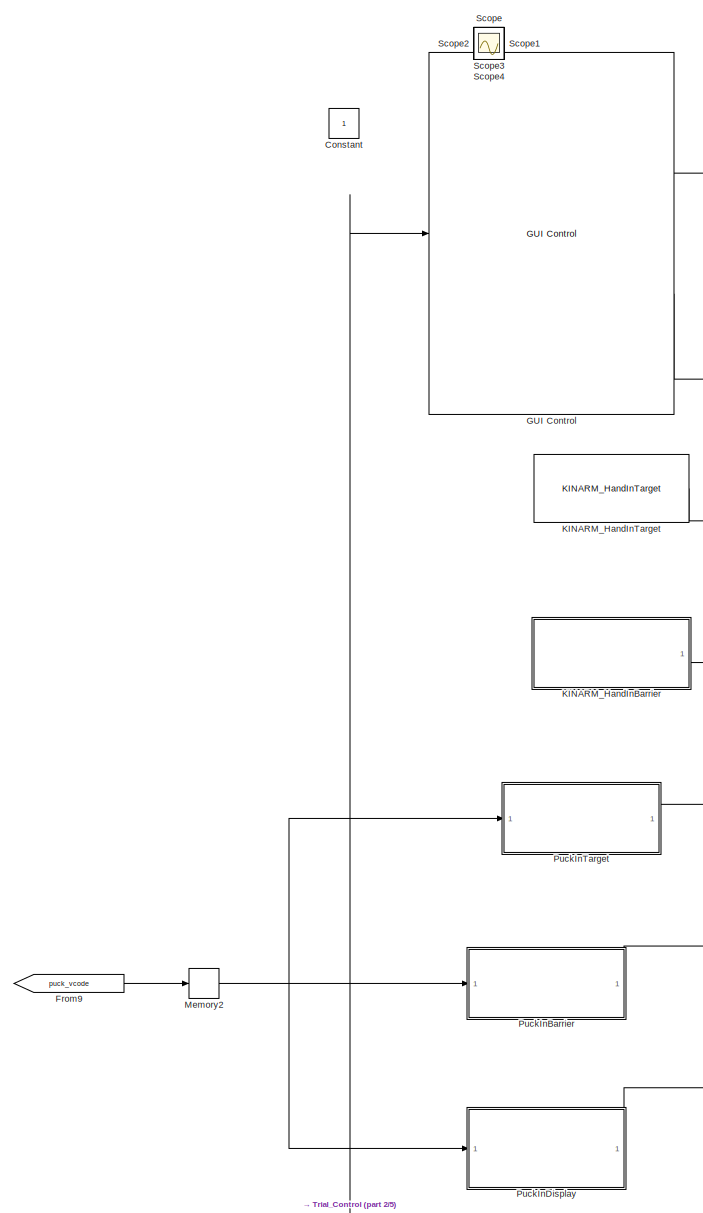
[diagram: root canvas - part 1/5, left side, full height]
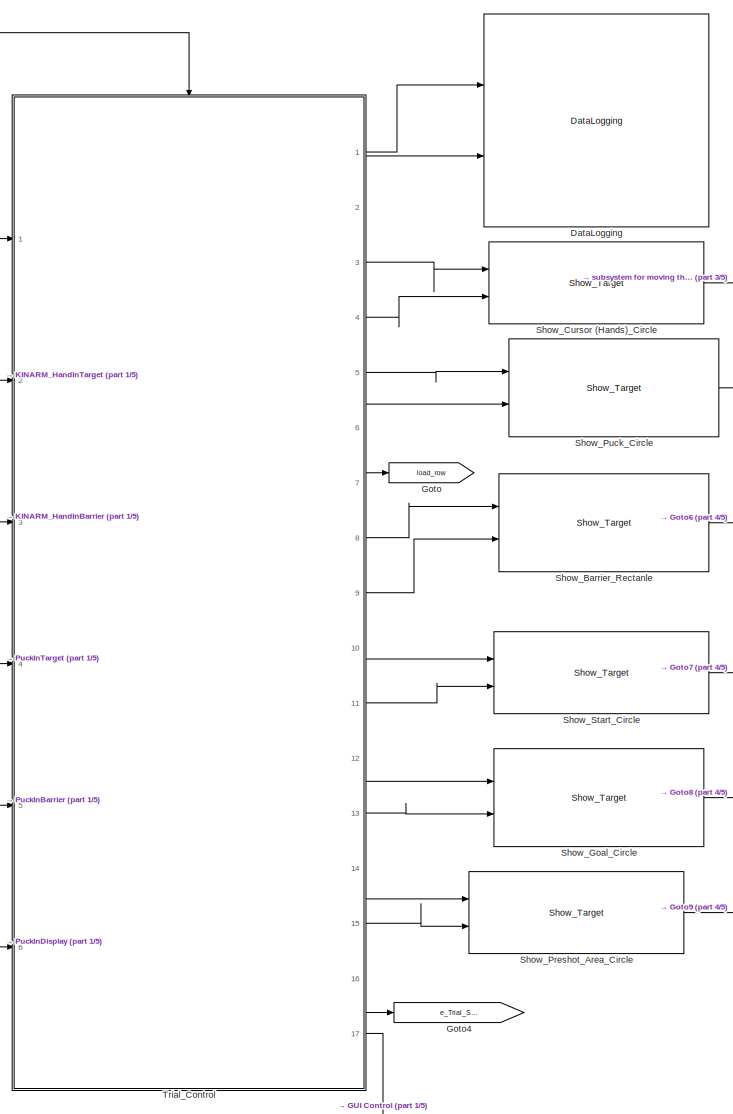
[diagram: root canvas - part 2/5, central region]
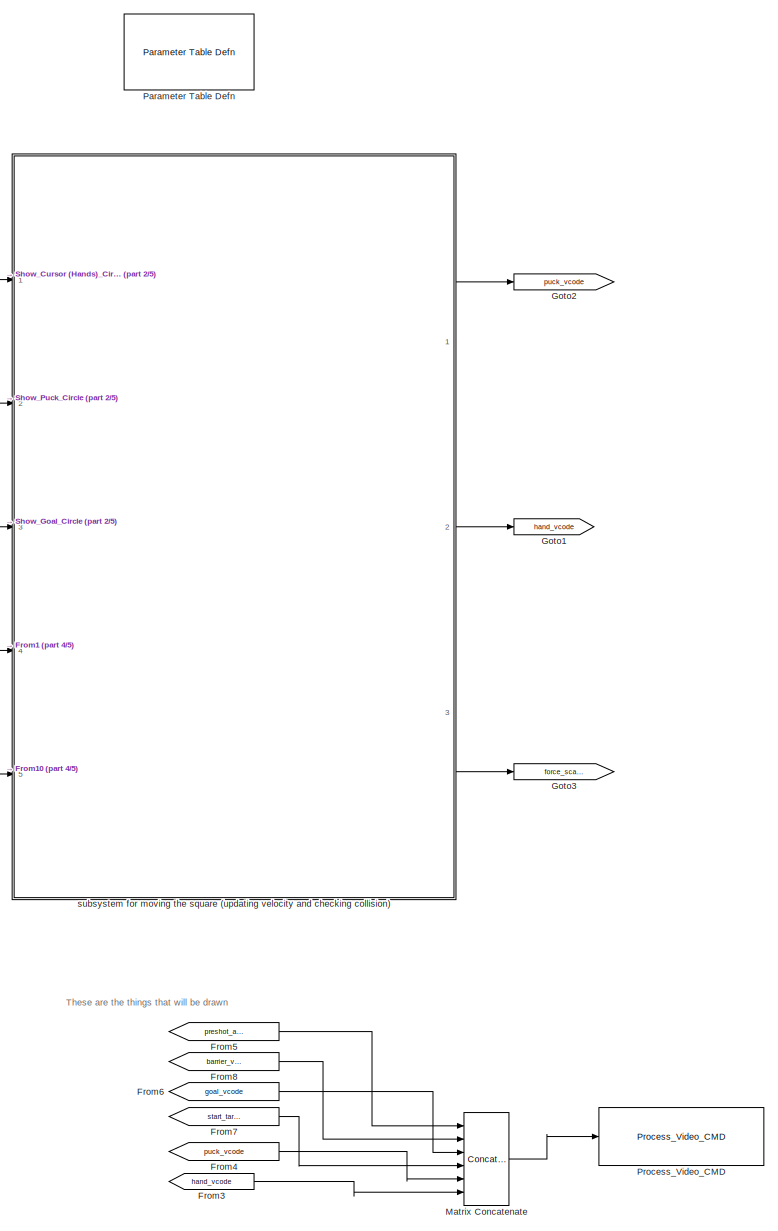
[diagram: root canvas - part 3/5, right side, full height]
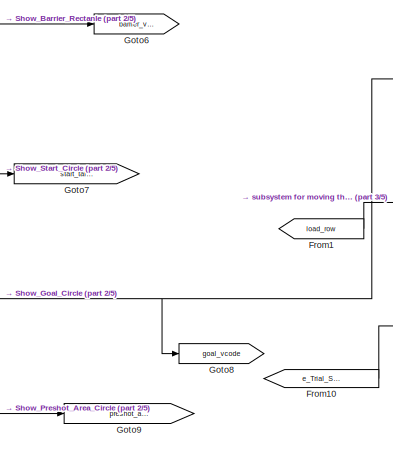
[diagram: root canvas - part 4/5, central region]
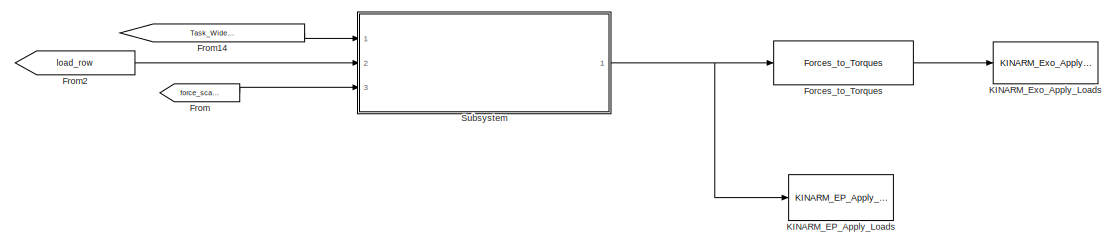
[diagram: root canvas - part 5/5, bottom center region]
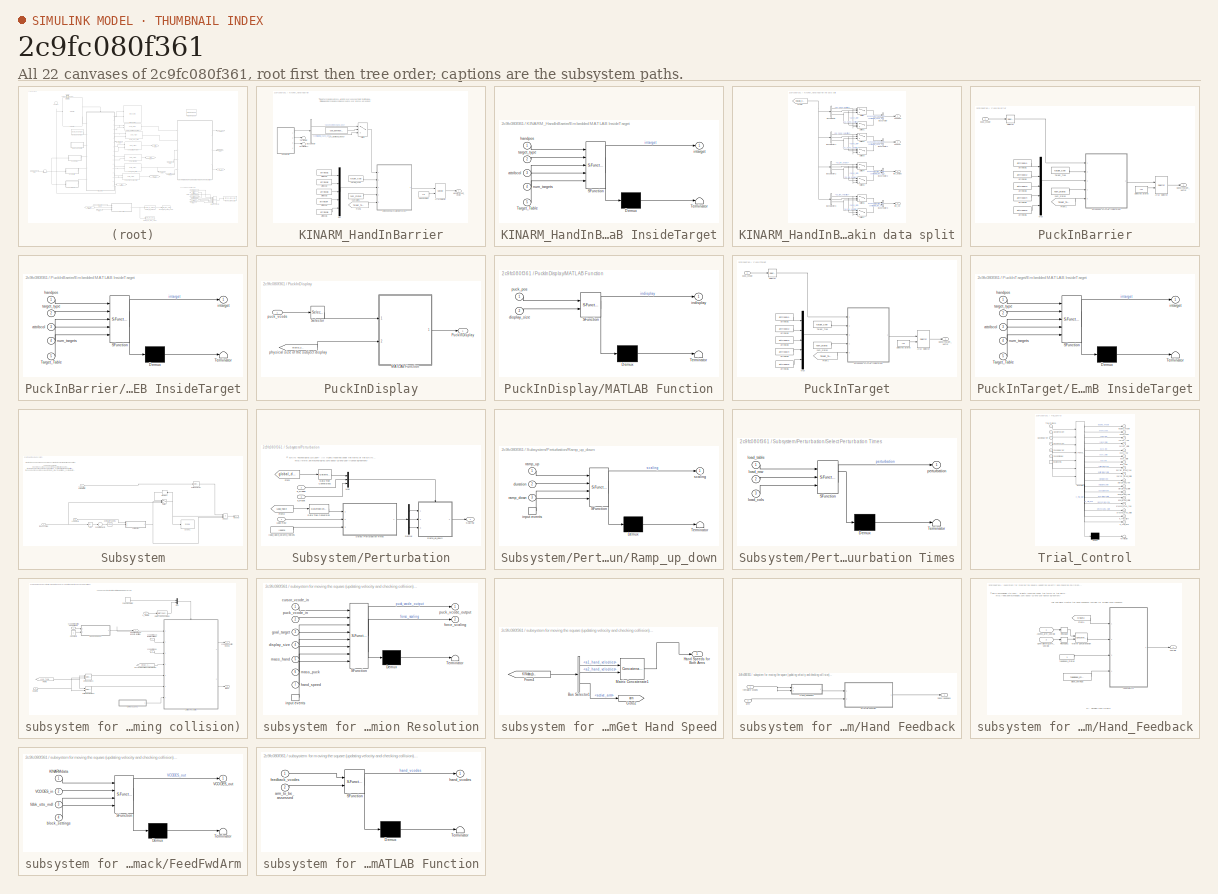
[diagram: thumbnail index - all 22 canvases of the model, root first then tree order]
MODEL slx_2c9fc080f361
KIND model
CONFIG AbsTol = auto
CONFIG EnableMultiTasking = on
CONFIG FixedStep = BKIN_STEP_TIME
CONFIG MaxStep = auto
CONFIG MinStep = auto
CONFIG RelTol = 1e-3
CONFIG SampleTimeConstraint = Unconstrained
CONFIG Solver = ode4
CONFIG SolverName = ode4
CONFIG StartFcn =  warndlg('Dexterit-E models cannot run under simulation. Please compile your model and run it from within Dexterit-E.');set_param(bdroot,'SimulationCommand','stop')
CONFIG StartTime = 0.0
CONFIG StopTime = inf
WORKSPACE source: mxarray member
WORKSPACE BARRIER_ROW = 5
WORKSPACE BKIN_KINEMATIC_FRAME_SIZE = 400
WORKSPACE BKIN_STEP_TIME = 0.00025
WORKSPACE CIRCLE_STROKE = 10
WORKSPACE CIRCLE_STROKE_W = 11
WORKSPACE CURSOR_ROW = 2
WORKSPACE E_BARRIER_HIT = 6
WORKSPACE E_COLLISION_HIT = 7
WORKSPACE E_ENTER_PRESHOT_AREA = 2
WORKSPACE E_ENTER_START_AREA = 12
WORKSPACE E_EXIT = 13
WORKSPACE E_EXIT_PRESHOT_AREA = 10
WORKSPACE E_GOAL_HIT = 8
WORKSPACE E_GOAL_REACHED = 5
WORKSPACE E_NO_EVENT = 0
WORKSPACE E_PRESHOT_ROW = 4
WORKSPACE E_TARGET_OUT_OF_BOUNDS = 9
WORKSPACE E_TRIAL_BEGIN = 1
WORKSPACE E_TRIAL_ENDED = 3
WORKSPACE FIRST_FILL = 8
WORKSPACE FORCE_MULTIPLIER = 1
WORKSPACE F_BUMP = 1
WORKSPACE GOAL_ROW = 8
WORKSPACE GOAL_TIME = 12
WORKSPACE HEIGHT = 6
WORKSPACE INVISIBLE_FILL = 15
WORKSPACE LOAD_ROW = 4
WORKSPACE MASS_CIRCLE = 2
WORKSPACE MASS_RECT = 3
WORKSPACE PERT_DUR = 5
WORKSPACE PERT_RAMP = 4
WORKSPACE PRESHOT_ROW = 7
WORKSPACE PUCK_ROW = 3
WORKSPACE RADIUS_LOG = 4
WORKSPACE RADIUS_VIS = 5
WORKSPACE RECT_STROKE = 13
WORKSPACE RECT_STROKE_W = 14
WORKSPACE ROTATION = 7
WORKSPACE SECONDS = 1
WORKSPACE SECOND_FILL = 9
WORKSPACE SHOT_READY_TIME = 10
WORKSPACE SHOT_SET_TIME = 11
WORKSPACE START_HOLD_TIME = 9
WORKSPACE START_ROW = 6
WORKSPACE THIRD_FILL = 12
WORKSPACE TRIAL_FAILURE = 11
WORKSPACE WIDTH = 3
WORKSPACE col_x = 1
WORKSPACE col_y = 2
BLOCK [Constant] Constant
  IOType = siggen
BLOCK [Reference] DataLogging  REF=General/DataLogging
  Ports = [2]
  SourceBlock = General/DataLogging
  SourceType = DataLogging
BLOCK [Reference] Forces_to_Torques  REF=KINARM_loads/Forces_to_Torques
  Ports = [1, 1]
  SourceBlock = KINARM_loads/Forces_to_Torques
  SourceType = Forces_to_Torques
BLOCK [From] From
  GotoTag = force_scaling
BLOCK [From] From1
  GotoTag = load_row
BLOCK [From] From10
  GotoTag = e_Trial_Start
BLOCK [From] From14
  GotoTag = Task_Wide_Parameters
  TagVisibility = global
BLOCK [From] From2
  GotoTag = load_row
BLOCK [From] From3
  GotoTag = hand_vcode
BLOCK [From] From4
  GotoTag = puck_vcode
BLOCK [From] From5
  GotoTag = preshot_area_vcode
BLOCK [From] From6
  GotoTag = goal_vcode
BLOCK [From] From7
  GotoTag = start_target_vcode
BLOCK [From] From8
  GotoTag = barrier_vcode
BLOCK [From] From9
  GotoTag = puck_vcode
BLOCK [Reference] GUI Control  REF=General/GUI Control
  Ports = [1, 2]
  SourceBlock = General/GUI Control
  SourceType = GUI Control
BLOCK [Goto] Goto
  GotoTag = load_row
BLOCK [Goto] Goto1
  GotoTag = hand_vcode
BLOCK [Goto] Goto2
  GotoTag = puck_vcode
BLOCK [Goto] Goto3
  GotoTag = force_scaling
BLOCK [Goto] Goto4
  GotoTag = e_Trial_Start
BLOCK [Goto] Goto6
  GotoTag = barrier_vcode
BLOCK [Goto] Goto7
  GotoTag = start_target_vcode
BLOCK [Goto] Goto8
  GotoTag = goal_vcode
BLOCK [Goto] Goto9
  GotoTag = preshot_area_vcode
BLOCK [Reference] KINARM_EP_Apply_Loads  REF=KINARM_EP_loads/KINARM_EP_Apply_Loads
  Ports = [1]
  SourceBlock = KINARM_EP_loads/KINARM_EP_Apply_Loads
  SourceType = KINARM_EP_Apply_Loads
BLOCK [Reference] KINARM_Exo_Apply_Loads  REF=KINARM_loads/KINARM_Exo_Apply_Loads
  Ports = [1]
  SourceBlock = KINARM_loads/KINARM_Exo_Apply_Loads
  SourceType = KINARM_Exo_Apply_Loads
BLOCK [SubSystem] KINARM_HandInBarrier
  AncestorBlock = KINARM_general/KINARM_HandInTarget
  Ports = [0, 1]
  RequestExecContextInheritance = off
BLOCK [Selector] KINARM_HandInBarrier/Array Selector
  IndexOptions = Select all,Index vector (port)
  Indices = -1,1
  InputPortWidth = 3
  NumberOfDimensions = 2
  OutputSizes = slselsubs([(-2),(-2)],1),slselsubs([(-2),(-2)],2)
  Ports = [2, 1]
BLOCK [BusSelector] KINARM_HandInBarrier/Bus Selector
  OutputAsBus = off
  OutputSignals = assessment_hand_pos,contralateral_hand_pos
  Ports = [1, 2]
BLOCK [SubSystem] KINARM_HandInBarrier/Embedded MATLAB InsideTarget
  ErrorFcn = Stateflow.Translate.translate
  PermitHierarchicalResolution = ExplicitOnly
  Ports = [5, 1]
  RTWFileNameOpts = Use function name
  RTWSystemCode = Nonreusable function
  RequestExecContextInheritance = off
  SFBlockType = MATLAB Function
  TreatAsAtomicUnit = on
BLOCK [Demux] KINARM_HandInBarrier/Embedded MATLAB InsideTarget/ Demux 
  Outputs = 1
  Ports = [1, 1]
BLOCK [S-Function] KINARM_HandInBarrier/Embedded MATLAB InsideTarget/ SFunction 
  EnableBusSupport = on
  FunctionName = sf_sfun
  PortCounts = [5 2]
  Ports = [5, 2]
  SFcnIsStateOwnerBlock = off
  SFunctionDeploymentMode = off
  Tag = Stateflow S-Function 7
BLOCK [Terminator] KINARM_HandInBarrier/Embedded MATLAB InsideTarget/ Terminator 
BLOCK [Inport] KINARM_HandInBarrier/Embedded MATLAB InsideTarget/Target_Table
  IconDisplay = Port number
  Port = 5
BLOCK [Inport] KINARM_HandInBarrier/Embedded MATLAB InsideTarget/attribcol
  IconDisplay = Port number
  Port = 3
BLOCK [Inport] KINARM_HandInBarrier/Embedded MATLAB InsideTarget/handpos
  IconDisplay = Port number
BLOCK [Outport] KINARM_HandInBarrier/Embedded MATLAB InsideTarget/intarget
  IconDisplay = Port number
BLOCK [Inport] KINARM_HandInBarrier/Embedded MATLAB InsideTarget/num_targets
  IconDisplay = Port number
  Port = 4
BLOCK [Inport] KINARM_HandInBarrier/Embedded MATLAB InsideTarget/target_type
  IconDisplay = Port number
  Port = 2
BLOCK [From] KINARM_HandInBarrier/From1
  CloseFcn = tagdialog Close
  GotoTag = Target_Table
  TagVisibility = global
BLOCK [Outport] KINARM_HandInBarrier/HandInTarget_Vector
  IconDisplay = Port number
BLOCK [Mux] KINARM_HandInBarrier/Mux
  DisplayOption = bar
  Inputs = 5
  Ports = [5, 1]
BLOCK [Constant] KINARM_HandInBarrier/Selected States
  Value = [1]
BLOCK [Switch] KINARM_HandInBarrier/Switch
  Criteria = u2 > Threshold
  InputSameDT = off
  SaturateOnIntegerOverflow = off
BLOCK [Constant] KINARM_HandInBarrier/Target_Type
  Value = target_type
BLOCK [Terminator] KINARM_HandInBarrier/Terminator
BLOCK [Terminator] KINARM_HandInBarrier/Terminator1
BLOCK [Constant] KINARM_HandInBarrier/Use_Dominant_Hand?
  Value = use_dominant_hand
BLOCK [Constant] KINARM_HandInBarrier/attribcol1
  Value = attribcol1
BLOCK [Constant] KINARM_HandInBarrier/attribcol2
  Value = attribcol2
BLOCK [Constant] KINARM_HandInBarrier/attribcol3
  Value = attribcol3
BLOCK [Constant] KINARM_HandInBarrier/attribcol4
  Value = attribcol4
BLOCK [Constant] KINARM_HandInBarrier/attribcol5
  Value = attribcol5
BLOCK [SubSystem] KINARM_HandInBarrier/kin data split
  Ports = [0, 4]
  RequestExecContextInheritance = off
BLOCK [BusCreator] KINARM_HandInBarrier/kin data split/Bus Creator
  DisplayOption = bar
  InheritFromInputs = on
  Inputs = 2
  Ports = [2, 1]
BLOCK [BusCreator] KINARM_HandInBarrier/kin data split/Bus Creator1
  DisplayOption = bar
  InheritFromInputs = on
  Inputs = 2
  Ports = [2, 1]
BLOCK [BusCreator] KINARM_HandInBarrier/kin data split/Bus Creator2
  DisplayOption = bar
  InheritFromInputs = on
  Inputs = 2
  Ports = [2, 1]
BLOCK [BusCreator] KINARM_HandInBarrier/kin data split/Bus Creator3
  DisplayOption = bar
  InheritFromInputs = on
  Inputs = 2
  Ports = [2, 1]
BLOCK [BusSelector] KINARM_HandInBarrier/kin data split/Bus Selector
  OutputAsBus = off
  OutputSignals = Robot2.a2_hand_position,KINDataGeneral.active_arm,Robot1.a1_hand_position
  Ports = [1, 3]
BLOCK [BusSelector] KINARM_HandInBarrier/kin data split/Bus Selector1
  OutputAsBus = off
  OutputSignals = Robot2.a2_hand_velocities,KINDataGeneral.active_arm,Robot1.a1_hand_velocities
  Ports = [1, 3]
BLOCK [BusSelector] KINARM_HandInBarrier/kin data split/Bus Selector2
  OutputAsBus = off
  OutputSignals = Robot2.a2_link_angles,KINDataGeneral.active_arm,Robot1.a1_link_angles
  Ports = [1, 3]
BLOCK [BusSelector] KINARM_HandInBarrier/kin data split/Bus Selector3
  OutputAsBus = off
  OutputSignals = Robot2.a2_link_velocities,KINDataGeneral.active_arm,Robot1.a1_link_velocities
  Ports = [1, 3]
BLOCK [From] KINARM_HandInBarrier/kin data split/From1
  CloseFcn = tagdialog Close
  GotoTag = KINdata_bus
  TagVisibility = global
BLOCK [Switch] KINARM_HandInBarrier/kin data split/Switch
  Criteria = u2 > Threshold
  InputSameDT = off
  SaturateOnIntegerOverflow = off
  Threshold = 1
BLOCK [Switch] KINARM_HandInBarrier/kin data split/Switch1
  Criteria = u2 > Threshold
  InputSameDT = off
  SaturateOnIntegerOverflow = off
  Threshold = 1
BLOCK [Switch] KINARM_HandInBarrier/kin data split/Switch2
  Criteria = u2 > Threshold
  InputSameDT = off
  SaturateOnIntegerOverflow = off
  Threshold = 1
BLOCK [Switch] KINARM_HandInBarrier/kin data split/Switch3
  Criteria = u2 > Threshold
  InputSameDT = off
  SaturateOnIntegerOverflow = off
  Threshold = 1
BLOCK [Switch] KINARM_HandInBarrier/kin data split/Switch4
  Criteria = u2 > Threshold
  InputSameDT = off
  SaturateOnIntegerOverflow = off
  Threshold = 1
BLOCK [Switch] KINARM_HandInBarrier/kin data split/Switch5
  Criteria = u2 > Threshold
  InputSameDT = off
  SaturateOnIntegerOverflow = off
  Threshold = 1
BLOCK [Switch] KINARM_HandInBarrier/kin data split/Switch6
  Criteria = u2 > Threshold
  InputSameDT = off
  SaturateOnIntegerOverflow = off
  Threshold = 1
BLOCK [Switch] KINARM_HandInBarrier/kin data split/Switch7
  Criteria = u2 > Threshold
  InputSameDT = off
  SaturateOnIntegerOverflow = off
  Threshold = 1
BLOCK [Outport] KINARM_HandInBarrier/kin data split/hand pos
  IconDisplay = Port number
BLOCK [Outport] KINARM_HandInBarrier/kin data split/hand vel
  IconDisplay = Port number
  Port = 2
BLOCK [Outport] KINARM_HandInBarrier/kin data split/link_angles
  IconDisplay = Port number
  Port = 3
BLOCK [Outport] KINARM_HandInBarrier/kin data split/link_vel
  IconDisplay = Port number
  Port = 4
BLOCK [Constant] KINARM_HandInBarrier/num_states
  Value = num_states
BLOCK [Reference] KINARM_HandInTarget  REF=KINARM_general/KINARM_HandInTarget
  Ports = [0, 1]
  SourceBlock = KINARM_general/KINARM_HandInTarget
  SourceType = KINARM_HandInTarget
BLOCK [Concatenate] Matrix Concatenate
  Mode = Multidimensional array
  NumInputs = 6
  Ports = [6, 1]
BLOCK [Memory] Memory2
BLOCK [Reference] Parameter Table Defn  REF=General/Parameter Table Defn
  Ports = []
  SourceBlock = General/Parameter Table Defn
  UserDataPersistent = on
BLOCK [Reference] Process_Video_CMD  REF=Video/Process_Video_CMD
  Ports = [1]
  SourceBlock = Video/Process_Video_CMD
  SourceType = Process_Video_CMD
BLOCK [SubSystem] PuckInBarrier
  AncestorBlock = KINARM_general/KINARM_HandInTarget
  Ports = [1, 1]
  RequestExecContextInheritance = off
BLOCK [Selector] PuckInBarrier/Array Selector
  IndexOptions = Select all,Index vector (port)
  Indices = -1,1
  InputPortWidth = 3
  NumberOfDimensions = 2
  OutputSizes = slselsubs([(-2),(-2)],1),slselsubs([(-2),(-2)],2)
  Ports = [2, 1]
BLOCK [SubSystem] PuckInBarrier/Embedded MATLAB InsideTarget
  ErrorFcn = Stateflow.Translate.translate
  PermitHierarchicalResolution = ExplicitOnly
  Ports = [5, 1]
  RTWFileNameOpts = Use function name
  RTWSystemCode = Nonreusable function
  RequestExecContextInheritance = off
  SFBlockType = MATLAB Function
  TreatAsAtomicUnit = on
BLOCK [Demux] PuckInBarrier/Embedded MATLAB InsideTarget/ Demux 
  Outputs = 1
  Ports = [1, 1]
BLOCK [S-Function] PuckInBarrier/Embedded MATLAB InsideTarget/ SFunction 
  EnableBusSupport = on
  FunctionName = sf_sfun
  PortCounts = [5 2]
  Ports = [5, 2]
  SFcnIsStateOwnerBlock = off
  SFunctionDeploymentMode = off
  Tag = Stateflow S-Function 6
BLOCK [Terminator] PuckInBarrier/Embedded MATLAB InsideTarget/ Terminator 
BLOCK [Inport] PuckInBarrier/Embedded MATLAB InsideTarget/Target_Table
  IconDisplay = Port number
  Port = 5
BLOCK [Inport] PuckInBarrier/Embedded MATLAB InsideTarget/attribcol
  IconDisplay = Port number
  Port = 3
BLOCK [Inport] PuckInBarrier/Embedded MATLAB InsideTarget/handpos
  IconDisplay = Port number
BLOCK [Outport] PuckInBarrier/Embedded MATLAB InsideTarget/intarget
  IconDisplay = Port number
BLOCK [Inport] PuckInBarrier/Embedded MATLAB InsideTarget/num_targets
  IconDisplay = Port number
  Port = 4
BLOCK [Inport] PuckInBarrier/Embedded MATLAB InsideTarget/target_type
  IconDisplay = Port number
  Port = 2
BLOCK [From] PuckInBarrier/From1
  CloseFcn = tagdialog Close
  GotoTag = Target_Table
  TagVisibility = global
BLOCK [Outport] PuckInBarrier/HandInTarget_Vector
  IconDisplay = Port number
BLOCK [Mux] PuckInBarrier/Mux
  DisplayOption = bar
  Inputs = 5
  Ports = [5, 1]
BLOCK [Constant] PuckInBarrier/Selected States
  Value = [1]
BLOCK [Selector] PuckInBarrier/Selector
  IndexOptions = Index vector (dialog),Index vector (dialog)
  Indices = 1,[3,4]
  InputPortWidth = 3
  NumberOfDimensions = 2
  OutputSizes = 1,1
  Ports = [1, 1]
BLOCK [Constant] PuckInBarrier/Target_Type
  Value = target_type
BLOCK [Constant] PuckInBarrier/attribcol1
  Value = attribcol1
BLOCK [Constant] PuckInBarrier/attribcol2
  Value = attribcol2
BLOCK [Constant] PuckInBarrier/attribcol3
  Value = attribcol3
BLOCK [Constant] PuckInBarrier/attribcol4
  Value = attribcol4
BLOCK [Constant] PuckInBarrier/attribcol5
  Value = attribcol5
BLOCK [Constant] PuckInBarrier/num_states
  Value = num_states
BLOCK [Inport] PuckInBarrier/puck_vcode
  IconDisplay = Port number
  PortDimensions = [1,70]
BLOCK [SubSystem] PuckInDisplay
  Ports = [1, 1]
  RequestExecContextInheritance = off
BLOCK [SubSystem] PuckInDisplay/MATLAB Function
  ErrorFcn = Stateflow.Translate.translate
  PermitHierarchicalResolution = ExplicitOnly
  Ports = [2, 1]
  RequestExecContextInheritance = off
  SFBlockType = MATLAB Function
  TreatAsAtomicUnit = on
BLOCK [Demux] PuckInDisplay/MATLAB Function/ Demux 
  Outputs = 1
  Ports = [1, 1]
BLOCK [S-Function] PuckInDisplay/MATLAB Function/ SFunction 
  EnableBusSupport = on
  FunctionName = sf_sfun
  PortCounts = [2 2]
  Ports = [2, 2]
  SFcnIsStateOwnerBlock = off
  SFunctionDeploymentMode = off
  Tag = Stateflow S-Function 10
BLOCK [Terminator] PuckInDisplay/MATLAB Function/ Terminator 
BLOCK [Inport] PuckInDisplay/MATLAB Function/display_size
  IconDisplay = Port number
  Port = 2
BLOCK [Outport] PuckInDisplay/MATLAB Function/indisplay
  IconDisplay = Port number
BLOCK [Inport] PuckInDisplay/MATLAB Function/puck_pos
  IconDisplay = Port number
BLOCK [Outport] PuckInDisplay/PuckInDisplay
  IconDisplay = Port number
BLOCK [Selector] PuckInDisplay/Selector
  IndexOptions = Index vector (dialog),Index vector (dialog)
  Indices = 1,[3,4]
  InputPortWidth = 3
  NumberOfDimensions = 2
  OutputSizes = 1,1
  Ports = [1, 1]
BLOCK [From] PuckInDisplay/physical size of the subject display
  GotoTag = display_size_m
  TagVisibility = global
BLOCK [Inport] PuckInDisplay/puck_vcode
  IconDisplay = Port number
  PortDimensions = [1,70]
BLOCK [SubSystem] PuckInTarget
  AncestorBlock = KINARM_general/KINARM_HandInTarget
  Ports = [1, 1]
  RequestExecContextInheritance = off
BLOCK [Selector] PuckInTarget/Array Selector
  IndexOptions = Select all,Index vector (port)
  Indices = -1,1
  InputPortWidth = 3
  NumberOfDimensions = 2
  OutputSizes = slselsubs([(-2),(-2)],1),slselsubs([(-2),(-2)],2)
  Ports = [2, 1]
BLOCK [SubSystem] PuckInTarget/Embedded MATLAB InsideTarget
  ErrorFcn = Stateflow.Translate.translate
  PermitHierarchicalResolution = ExplicitOnly
  Ports = [5, 1]
  RTWFileNameOpts = Use function name
  RTWSystemCode = Nonreusable function
  RequestExecContextInheritance = off
  SFBlockType = MATLAB Function
  TreatAsAtomicUnit = on
BLOCK [Demux] PuckInTarget/Embedded MATLAB InsideTarget/ Demux 
  Outputs = 1
  Ports = [1, 1]
BLOCK [S-Function] PuckInTarget/Embedded MATLAB InsideTarget/ SFunction 
  EnableBusSupport = on
  FunctionName = sf_sfun
  PortCounts = [5 2]
  Ports = [5, 2]
  SFcnIsStateOwnerBlock = off
  SFunctionDeploymentMode = off
  Tag = Stateflow S-Function 5
BLOCK [Terminator] PuckInTarget/Embedded MATLAB InsideTarget/ Terminator 
BLOCK [Inport] PuckInTarget/Embedded MATLAB InsideTarget/Target_Table
  IconDisplay = Port number
  Port = 5
BLOCK [Inport] PuckInTarget/Embedded MATLAB InsideTarget/attribcol
  IconDisplay = Port number
  Port = 3
BLOCK [Inport] PuckInTarget/Embedded MATLAB InsideTarget/handpos
  IconDisplay = Port number
BLOCK [Outport] PuckInTarget/Embedded MATLAB InsideTarget/intarget
  IconDisplay = Port number
BLOCK [Inport] PuckInTarget/Embedded MATLAB InsideTarget/num_targets
  IconDisplay = Port number
  Port = 4
BLOCK [Inport] PuckInTarget/Embedded MATLAB InsideTarget/target_type
  IconDisplay = Port number
  Port = 2
BLOCK [From] PuckInTarget/From1
  CloseFcn = tagdialog Close
  GotoTag = Target_Table
  TagVisibility = global
BLOCK [Outport] PuckInTarget/HandInTarget_Vector
  IconDisplay = Port number
BLOCK [Mux] PuckInTarget/Mux
  DisplayOption = bar
  Inputs = 5
  Ports = [5, 1]
BLOCK [Constant] PuckInTarget/Selected States
  Value = [1]
BLOCK [Selector] PuckInTarget/Selector
  IndexOptions = Index vector (dialog),Index vector (dialog)
  Indices = 1,[3,4]
  InputPortWidth = 3
  NumberOfDimensions = 2
  OutputSizes = 1,1
  Ports = [1, 1]
BLOCK [Constant] PuckInTarget/Target_Type
  Value = target_type
BLOCK [Constant] PuckInTarget/attribcol1
  Value = attribcol1
BLOCK [Constant] PuckInTarget/attribcol2
  Value = attribcol2
BLOCK [Constant] PuckInTarget/attribcol3
  Value = attribcol3
BLOCK [Constant] PuckInTarget/attribcol4
  Value = attribcol4
BLOCK [Constant] PuckInTarget/attribcol5
  Value = attribcol5
BLOCK [Constant] PuckInTarget/num_states
  Value = num_states
BLOCK [Inport] PuckInTarget/puck_vcode
  IconDisplay = Port number
  PortDimensions = [1,70]
BLOCK [Scope] Scope
  Floating = off
  IOType = viewer
  NumInputPorts = 1
  Ports = []
  ScopeSpecificationString = Simulink.scopes.TimeScopeBlockCfg('CurrentConfiguration', extmgr.ConfigurationSet(extmgr.Configuration('Core','General UI',true,'FigureColor',[0.156862745098039 0.156862745098039 0.156862745098039]),extmgr.Configuration('Core','Source UI',true),extmgr.Configuration('Sources','WiredSimulink',true,'DataLoggingSaveFormat','StructureWithTime','DataLoggingDecimation','1','DataLoggingDecimateData',true)...<+2714ch>
BLOCK [Scope] Scope1
  Floating = off
  IOType = viewer
  NumInputPorts = 1
  Ports = []
  ScopeSpecificationString = Simulink.scopes.TimeScopeBlockCfg('CurrentConfiguration', extmgr.ConfigurationSet(extmgr.Configuration('Core','General UI',true,'FigureColor',[0.156862745098039 0.156862745098039 0.156862745098039]),extmgr.Configuration('Core','Source UI',true),extmgr.Configuration('Sources','WiredSimulink',true,'DataLoggingVariableName','ScopeData1','DataLoggingSaveFormat','StructureWithTime','DataLoggingDecimati...<+2753ch>
BLOCK [Scope] Scope2
  Floating = off
  IOType = viewer
  NumInputPorts = 1
  Ports = []
  ScopeSpecificationString = Simulink.scopes.TimeScopeBlockCfg('CurrentConfiguration', extmgr.ConfigurationSet(extmgr.Configuration('Core','General UI',true,'FigureColor',[0.156862745098039 0.156862745098039 0.156862745098039]),extmgr.Configuration('Core','Source UI',true),extmgr.Configuration('Sources','WiredSimulink',true,'DataLoggingVariableName','ScopeData2','DataLoggingSaveFormat','StructureWithTime','DataLoggingDecimati...<+2753ch>
BLOCK [Scope] Scope3
  Floating = off
  IOType = viewer
  NumInputPorts = 1
  Ports = []
  ScopeSpecificationString = Simulink.scopes.TimeScopeBlockCfg('CurrentConfiguration', extmgr.ConfigurationSet(extmgr.Configuration('Core','General UI',true,'FigureColor',[0.156862745098039 0.156862745098039 0.156862745098039]),extmgr.Configuration('Core','Source UI',true),extmgr.Configuration('Sources','WiredSimulink',true,'DataLoggingVariableName','ScopeData3','DataLoggingSaveFormat','StructureWithTime','DataLoggingDecimati...<+2753ch>
BLOCK [Scope] Scope4
  Floating = off
  IOType = viewer
  NumInputPorts = 1
  Ports = []
  ScopeSpecificationString = Simulink.scopes.TimeScopeBlockCfg('CurrentConfiguration', extmgr.ConfigurationSet(extmgr.Configuration('Core','General UI',true,'FigureColor',[0.156862745098039 0.156862745098039 0.156862745098039]),extmgr.Configuration('Core','Source UI',true),extmgr.Configuration('Sources','WiredSimulink',true,'DataLoggingVariableName','ScopeData4','DataLoggingSaveFormat','StructureWithTime','DataLoggingDecimati...<+2753ch>
BLOCK [Reference] Show_Barrier_Rectanle  REF=Video/Show_Target
  Ports = [2, 1]
  SourceBlock = Video/Show_Target
  SourceType = Show_Target
BLOCK [Reference] Show_Cursor (Hands)_Circle  REF=Video/Show_Target
  Ports = [2, 1]
  SourceBlock = Video/Show_Target
  SourceType = Show_Target
BLOCK [Reference] Show_Goal_Circle  REF=Video/Show_Target
  Ports = [2, 1]
  SourceBlock = Video/Show_Target
  SourceType = Show_Target
BLOCK [Reference] Show_Preshot_Area_Circle  REF=Video/Show_Target
  Ports = [2, 1]
  SourceBlock = Video/Show_Target
  SourceType = Show_Target
BLOCK [Reference] Show_Puck_Circle  REF=Video/Show_Target
  Ports = [2, 1]
  SourceBlock = Video/Show_Target
  SourceType = Show_Target
BLOCK [Reference] Show_Start_Circle  REF=Video/Show_Target
  Ports = [2, 1]
  SourceBlock = Video/Show_Target
  SourceType = Show_Target
BLOCK [SubSystem] Subsystem
  Ports = [3, 1]
  RequestExecContextInheritance = off
BLOCK [Abs] Subsystem/Abs
  SaturateOnIntegerOverflow = off
BLOCK [Reference] Subsystem/Compare To Zero1  REF=simulink/Logic and Bit
Operations/Compare
To Zero
  Ports = [1, 1]
  SourceBlock = simulink/Logic and Bit\nOperations/Compare\nTo Zero
  SourceProductBaseCode = SL
  SourceProductName = Simulink
  SourceType = Compare To Zero
BLOCK [Inport] Subsystem/Load Row
  IconDisplay = Port number
  Port = 2
BLOCK [Memory] Subsystem/Memory3
  InheritSampleTime = on
BLOCK [SubSystem] Subsystem/Perturbation
  AncestorBlock = KINARM_loads/Perturbation
  Ports = [3, 1]
  RequestExecContextInheritance = off
BLOCK [DataTypeConversion] Subsystem/Perturbation/Data Type Conversion
  RndMeth = Floor
  SaturateOnIntegerOverflow = off
BLOCK [DataTypeConversion] Subsystem/Perturbation/Data Type Conversion2
  RndMeth = Floor
  SaturateOnIntegerOverflow = off
BLOCK [Demux] Subsystem/Perturbation/Demux
  DisplayOption = bar
  Outputs = 3
  Ports = [1, 3]
BLOCK [From] Subsystem/Perturbation/From
  CloseFcn = tagdialog Close
  GotoTag = global_clock
  TagVisibility = global
BLOCK [From] Subsystem/Perturbation/From2
  CloseFcn = tagdialog Close
  GotoTag = Load_Table
  TagVisibility = global
BLOCK [Inport] Subsystem/Perturbation/Load Row
  IconDisplay = Port number
BLOCK [Mux] Subsystem/Perturbation/Mux
  DisplayOption = bar
  Inputs = 3
  Ports = [3, 1]
BLOCK [SubSystem] Subsystem/Perturbation/Ramp_up_down
  ErrorFcn = Stateflow.Translate.translate
  PermitHierarchicalResolution = ExplicitOnly
  Ports = [3, 1, 0, 1]
  RequestExecContextInheritance = off
  SFBlockType = Chart
  TreatAsAtomicUnit = on
BLOCK [Demux] Subsystem/Perturbation/Ramp_up_down/ Demux 
  Outputs = 1
  Ports = [1, 1]
BLOCK [S-Function] Subsystem/Perturbation/Ramp_up_down/ SFunction 
  EnableBusSupport = on
  FunctionName = sf_sfun
  PortCounts = [4 2]
  Ports = [4, 2]
  SFcnIsStateOwnerBlock = off
  SFunctionDeploymentMode = off
  Tag = Stateflow S-Function 8
BLOCK [Terminator] Subsystem/Perturbation/Ramp_up_down/ Terminator 
BLOCK [TriggerPort] Subsystem/Perturbation/Ramp_up_down/ input events 
  Ports = [0, 1]
  ShowOutputPort = on
  TriggerType = either
  VariantControl = (inherit)
BLOCK [Inport] Subsystem/Perturbation/Ramp_up_down/duration
  IconDisplay = Port number
  Port = 2
BLOCK [Inport] Subsystem/Perturbation/Ramp_up_down/ramp_down
  IconDisplay = Port number
  Port = 3
BLOCK [Inport] Subsystem/Perturbation/Ramp_up_down/ramp_up
  IconDisplay = Port number
BLOCK [Outport] Subsystem/Perturbation/Ramp_up_down/scaling
  IconDisplay = Port number
BLOCK [Outport] Subsystem/Perturbation/Scaling
  IconDisplay = Port number
BLOCK [SubSystem] Subsystem/Perturbation/Select Perturbation Times
  ErrorFcn = Stateflow.Translate.translate
  PermitHierarchicalResolution = ExplicitOnly
  Ports = [3, 1]
  RequestExecContextInheritance = off
  SFBlockType = MATLAB Function
  TreatAsAtomicUnit = on
BLOCK [Demux] Subsystem/Perturbation/Select Perturbation Times/ Demux 
  Outputs = 1
  Ports = [1, 1]
BLOCK [S-Function] Subsystem/Perturbation/Select Perturbation Times/ SFunction 
  EnableBusSupport = on
  FunctionName = sf_sfun
  PortCounts = [3 2]
  Ports = [3, 2]
  SFcnIsStateOwnerBlock = off
  SFunctionDeploymentMode = off
  Tag = Stateflow S-Function 9
BLOCK [Terminator] Subsystem/Perturbation/Select Perturbation Times/ Terminator 
BLOCK [Inport] Subsystem/Perturbation/Select Perturbation Times/load_cols
  IconDisplay = Port number
  Port = 3
BLOCK [Inport] Subsystem/Perturbation/Select Perturbation Times/load_row
  IconDisplay = Port number
  Port = 2
BLOCK [Inport] Subsystem/Perturbation/Select Perturbation Times/load_table
  IconDisplay = Port number
BLOCK [Outport] Subsystem/Perturbation/Select Perturbation Times/perturbation
  IconDisplay = Port number
BLOCK [Inport] Subsystem/Perturbation/e_Reset
  IconDisplay = Port number
  Port = 3
BLOCK [Inport] Subsystem/Perturbation/e_Trigger
  IconDisplay = Port number
  Port = 2
BLOCK [Constant] Subsystem/Perturbation/load_table_column_indices
  Value = loadcol
BLOCK [Product] Subsystem/Product
  InputSameDT = off
  Inputs = 3
  OutDataTypeStr = Inherit: Inherit via internal rule
  Ports = [3, 1]
  RndMeth = Floor
  SaturateOnIntegerOverflow = off
BLOCK [Reference] Subsystem/Scope 1  REF=slrtlib/Displays and
Logging/Scope 
  Ports = [1]
  SourceBlock = slrtlib/Displays and\nLogging/Scope
  SourceProductBaseCode = XP
  SourceProductName = Simulink Real-Time
  SourceType = xpcscopeblock
BLOCK [Sum] Subsystem/Sum of Elements
  InputSameDT = off
  Inputs = +
  OutDataTypeStr = Inherit: Inherit via internal rule
  Ports = [1, 1]
  SaturateOnIntegerOverflow = off
BLOCK [Switch] Subsystem/Switch
  Criteria = u2 > Threshold
  InputSameDT = off
  SaturateOnIntegerOverflow = off
BLOCK [Inport] Subsystem/Task Wide Parameters
  IconDisplay = Port number
BLOCK [Outport] Subsystem/forces (N)
  IconDisplay = Port number
BLOCK [Inport] Subsystem/forces scaling
  IconDisplay = Port number
  Port = 3
BLOCK [Selector] Subsystem/get fudge factor
  IndexOptions = Index vector (dialog)
  Indices = FORCE_MULTIPLIER
  OutputSizes = 1
  Ports = [1, 1]
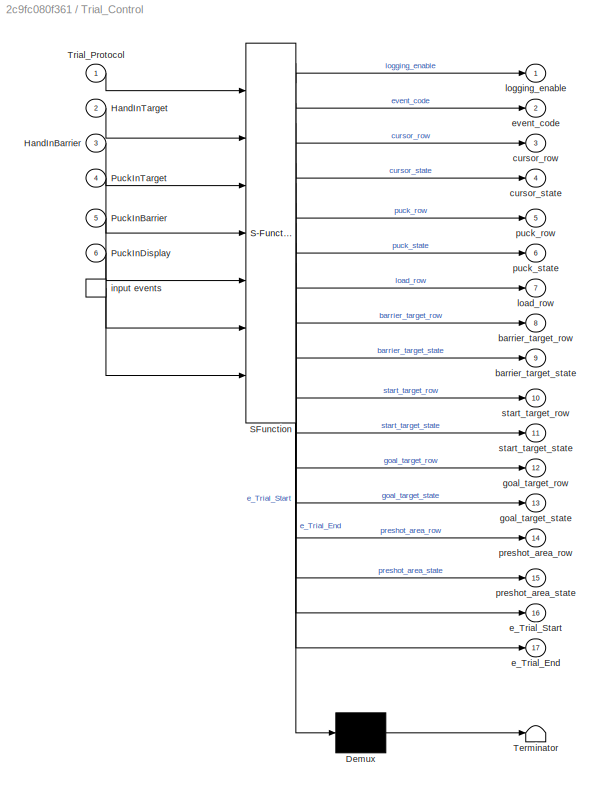
BLOCK [SubSystem] Trial_Control
  ErrorFcn = Stateflow.Translate.translate
  PermitHierarchicalResolution = ExplicitOnly
  Ports = [6, 17, 0, 1]
  RequestExecContextInheritance = off
  SFBlockType = Chart
  TreatAsAtomicUnit = on
BLOCK [Demux] Trial_Control/ Demux 
  Outputs = 1
  Ports = [1, 1]
BLOCK [S-Function] Trial_Control/ SFunction 
  EnableBusSupport = on
  FunctionName = sf_sfun
  PortCounts = [7 18]
  Ports = [7, 18]
  SFcnIsStateOwnerBlock = off
  SFunctionDeploymentMode = off
  Tag = Stateflow S-Function 3
BLOCK [Terminator] Trial_Control/ Terminator 
BLOCK [Inport] Trial_Control/HandInBarrier
  IconDisplay = Port number
  Port = 3
BLOCK [Inport] Trial_Control/HandInTarget
  IconDisplay = Port number
  Port = 2
BLOCK [Inport] Trial_Control/PuckInBarrier
  IconDisplay = Port number
  Port = 5
BLOCK [Inport] Trial_Control/PuckInDisplay
  IconDisplay = Port number
  Port = 6
BLOCK [Inport] Trial_Control/PuckInTarget
  IconDisplay = Port number
  Port = 4
BLOCK [Inport] Trial_Control/Trial_Protocol
  IconDisplay = Port number
BLOCK [Outport] Trial_Control/barrier_target_row
  IconDisplay = Port number
  Port = 8
BLOCK [Outport] Trial_Control/barrier_target_state
  IconDisplay = Port number
  Port = 9
BLOCK [Outport] Trial_Control/cursor_row
  IconDisplay = Port number
  Port = 3
BLOCK [Outport] Trial_Control/cursor_state
  IconDisplay = Port number
  Port = 4
BLOCK [Outport] Trial_Control/e_Trial_End
  IconDisplay = Port number
  Port = 17
BLOCK [Outport] Trial_Control/e_Trial_Start
  IconDisplay = Port number
  Port = 16
BLOCK [Outport] Trial_Control/event_code
  IconDisplay = Port number
  Port = 2
BLOCK [Outport] Trial_Control/goal_target_row
  IconDisplay = Port number
  Port = 12
BLOCK [Outport] Trial_Control/goal_target_state
  IconDisplay = Port number
  Port = 13
BLOCK [TriggerPort] Trial_Control/input events
  Ports = [0, 1]
  ShowOutputPort = on
  TriggerType = either
  VariantControl = (inherit)
BLOCK [Outport] Trial_Control/load_row
  IconDisplay = Port number
  Port = 7
BLOCK [Outport] Trial_Control/logging_enable
  IconDisplay = Port number
BLOCK [Outport] Trial_Control/preshot_area_row
  IconDisplay = Port number
  Port = 14
BLOCK [Outport] Trial_Control/preshot_area_state
  IconDisplay = Port number
  Port = 15
BLOCK [Outport] Trial_Control/puck_row
  IconDisplay = Port number
  Port = 5
BLOCK [Outport] Trial_Control/puck_state
  IconDisplay = Port number
  Port = 6
BLOCK [Outport] Trial_Control/start_target_row
  IconDisplay = Port number
  Port = 10
BLOCK [Outport] Trial_Control/start_target_state
  IconDisplay = Port number
  Port = 11
BLOCK [SubSystem] subsystem for moving the square (updating velocity and checking collision)
  Ports = [5, 3]
  RequestExecContextInheritance = off
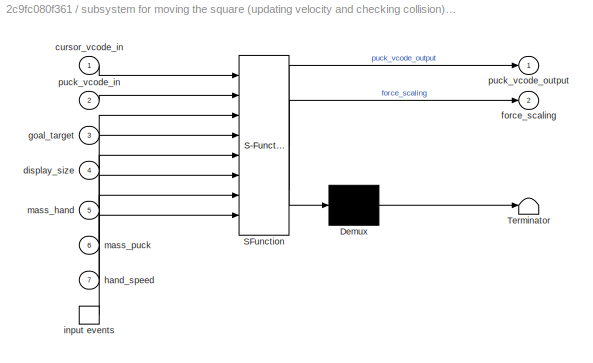
BLOCK [SubSystem] subsystem for moving the square (updating velocity and checking collision)/Collision Resolution
  ErrorFcn = Stateflow.Translate.translate
  PermitHierarchicalResolution = ExplicitOnly
  Ports = [7, 2, 0, 1]
  RequestExecContextInheritance = off
  SFBlockType = Chart
  TreatAsAtomicUnit = on
BLOCK [Demux] subsystem for moving the square (updating velocity and checking collision)/Collision Resolution/ Demux 
  Outputs = 1
  Ports = [1, 1]
BLOCK [S-Function] subsystem for moving the square (updating velocity and checking collision)/Collision Resolution/ SFunction 
  EnableBusSupport = on
  FunctionName = sf_sfun
  PortCounts = [8 3]
  Ports = [8, 3]
  SFcnIsStateOwnerBlock = off
  SFunctionDeploymentMode = off
  Tag = Stateflow S-Function 1
BLOCK [Terminator] subsystem for moving the square (updating velocity and checking collision)/Collision Resolution/ Terminator 
BLOCK [Inport] subsystem for moving the square (updating velocity and checking collision)/Collision Resolution/cursor_vcode_in
  IconDisplay = Port number
BLOCK [Inport] subsystem for moving the square (updating velocity and checking collision)/Collision Resolution/display_size
  IconDisplay = Port number
  Port = 4
BLOCK [Outport] subsystem for moving the square (updating velocity and checking collision)/Collision Resolution/force_scaling
  IconDisplay = Port number
  Port = 2
BLOCK [Inport] subsystem for moving the square (updating velocity and checking collision)/Collision Resolution/goal_target
  IconDisplay = Port number
  Port = 3
BLOCK [Inport] subsystem for moving the square (updating velocity and checking collision)/Collision Resolution/hand_speed
  IconDisplay = Port number
  Port = 7
BLOCK [TriggerPort] subsystem for moving the square (updating velocity and checking collision)/Collision Resolution/input events
  Ports = [0, 1]
  ShowOutputPort = on
  TriggerType = either
  VariantControl = (inherit)
BLOCK [Inport] subsystem for moving the square (updating velocity and checking collision)/Collision Resolution/mass_hand
  IconDisplay = Port number
  Port = 5
BLOCK [Inport] subsystem for moving the square (updating velocity and checking collision)/Collision Resolution/mass_puck
  IconDisplay = Port number
  Port = 6
BLOCK [Inport] subsystem for moving the square (updating velocity and checking collision)/Collision Resolution/puck_vcode_in
  IconDisplay = Port number
  Port = 2
BLOCK [Outport] subsystem for moving the square (updating velocity and checking collision)/Collision Resolution/puck_vcode_output
  IconDisplay = Port number
BLOCK [Constant] subsystem for moving the square (updating velocity and checking collision)/Constant2
BLOCK [DataTypeConversion] subsystem for moving the square (updating velocity and checking collision)/Data Type Conversion
  RndMeth = Floor
  SaturateOnIntegerOverflow = off
BLOCK [From] subsystem for moving the square (updating velocity and checking collision)/From5
  GotoTag = Load_Table
  TagVisibility = global
BLOCK [SubSystem] subsystem for moving the square (updating velocity and checking collision)/Get Hand Speed
  Ports = [0, 1]
  RequestExecContextInheritance = off
BLOCK [BusSelector] subsystem for moving the square (updating velocity and checking collision)/Get Hand Speed/Bus Selector1
  OutputAsBus = off
  OutputSignals = Robot1.a1_hand_velocities,Robot2.a2_hand_velocities,KINDataGeneral.active_arm
  Ports = [1, 3]
BLOCK [From] subsystem for moving the square (updating velocity and checking collision)/Get Hand Speed/From4
  GotoTag = KINdata_bus
  TagVisibility = global
BLOCK [Goto] subsystem for moving the square (updating velocity and checking collision)/Get Hand Speed/Goto2
  GotoTag = arm
BLOCK [Outport] subsystem for moving the square (updating velocity and checking collision)/Get Hand Speed/Hand Speeds for Both Arms
  IconDisplay = Port number
BLOCK [Concatenate] subsystem for moving the square (updating velocity and checking collision)/Get Hand Speed/Matrix Concatenate1
  Mode = Multidimensional array
  Ports = [2, 1]
BLOCK [SubSystem] subsystem for moving the square (updating velocity and checking collision)/Hand Feedback
  Ports = [2, 1]
  RequestExecContextInheritance = off
BLOCK [SubSystem] subsystem for moving the square (updating velocity and checking collision)/Hand Feedback/Hand_Feedback
  AncestorBlock = KINARM_general/Hand_Feedback
  Ports = [2, 1]
  RequestExecContextInheritance = off
BLOCK [Inport] subsystem for moving the square (updating velocity and checking collision)/Hand Feedback/Hand_Feedback/Assess_arm_VCODE
  IconDisplay = Port number
BLOCK [Inport] subsystem for moving the square (updating velocity and checking collision)/Hand Feedback/Hand_Feedback/Contralateral_arm_VCODE
  IconDisplay = Port number
  Port = 2
BLOCK [SubSystem] subsystem for moving the square (updating velocity and checking collision)/Hand Feedback/Hand_Feedback/FeedFwdArm
  ErrorFcn = Stateflow.Translate.translate
  PermitHierarchicalResolution = ExplicitOnly
  Ports = [4, 1]
  RTWFileNameOpts = Use function name
  RTWSystemCode = Nonreusable function
  RequestExecContextInheritance = off
  SFBlockType = MATLAB Function
  TreatAsAtomicUnit = on
BLOCK [Demux] subsystem for moving the square (updating velocity and checking collision)/Hand Feedback/Hand_Feedback/FeedFwdArm/ Demux 
  Outputs = 1
  Ports = [1, 1]
BLOCK [S-Function] subsystem for moving the square (updating velocity and checking collision)/Hand Feedback/Hand_Feedback/FeedFwdArm/ SFunction 
  EnableBusSupport = on
  FunctionName = sf_sfun
  PortCounts = [4 2]
  Ports = [4, 2]
  SFcnIsStateOwnerBlock = off
  SFunctionDeploymentMode = off
  Tag = Stateflow S-Function 4
BLOCK [Terminator] subsystem for moving the square (updating velocity and checking collision)/Hand Feedback/Hand_Feedback/FeedFwdArm/ Terminator 
BLOCK [Inport] subsystem for moving the square (updating velocity and checking collision)/Hand Feedback/Hand_Feedback/FeedFwdArm/KINARMdata
  IconDisplay = Port number
BLOCK [Inport] subsystem for moving the square (updating velocity and checking collision)/Hand Feedback/Hand_Feedback/FeedFwdArm/VCODES_in
  IconDisplay = Port number
  Port = 2
BLOCK [Outport] subsystem for moving the square (updating velocity and checking collision)/Hand Feedback/Hand_Feedback/FeedFwdArm/VCODES_out
  IconDisplay = Port number
BLOCK [Inport] subsystem for moving the square (updating velocity and checking collision)/Hand Feedback/Hand_Feedback/FeedFwdArm/block_settings
  IconDisplay = Port number
  Port = 4
BLOCK [Inport] subsystem for moving the square (updating velocity and checking collision)/Hand Feedback/Hand_Feedback/FeedFwdArm/fdbk_stts_mdl
  IconDisplay = Port number
  Port = 3
BLOCK [From] subsystem for moving the square (updating velocity and checking collision)/Hand Feedback/Hand_Feedback/From1
  CloseFcn = tagdialog Close
  GotoTag = KINdata
  TagVisibility = global
BLOCK [Concatenate] subsystem for moving the square (updating velocity and checking collision)/Hand Feedback/Hand_Feedback/Matrix Concatenation
  Mode = Multidimensional array
  Ports = [2, 1]
BLOCK [Reshape] subsystem for moving the square (updating velocity and checking collision)/Hand Feedback/Hand_Feedback/Reshape
  OutputDimensionality = Row vector (2-D)
  Ports = [1, 1]
BLOCK [Reshape] subsystem for moving the square (updating velocity and checking collision)/Hand Feedback/Hand_Feedback/Reshape1
  OutputDimensionality = Row vector (2-D)
  Ports = [1, 1]
BLOCK [Outport] subsystem for moving the square (updating velocity and checking collision)/Hand Feedback/Hand_Feedback/VCODE
  IconDisplay = Port number
BLOCK [Constant] subsystem for moving the square (updating velocity and checking collision)/Hand Feedback/Hand_Feedback/block_settings
  Value = feedback_cntl_src
BLOCK [Constant] subsystem for moving the square (updating velocity and checking collision)/Hand Feedback/Hand_Feedback/feedback_status
BLOCK [SubSystem] subsystem for moving the square (updating velocity and checking collision)/Hand Feedback/MATLAB Function
  ErrorFcn = Stateflow.Translate.translate
  PermitHierarchicalResolution = ExplicitOnly
  Ports = [2, 1]
  RequestExecContextInheritance = off
  SFBlockType = MATLAB Function
  TreatAsAtomicUnit = on
BLOCK [Demux] subsystem for moving the square (updating velocity and checking collision)/Hand Feedback/MATLAB Function/ Demux 
  Outputs = 1
  Ports = [1, 1]
BLOCK [S-Function] subsystem for moving the square (updating velocity and checking collision)/Hand Feedback/MATLAB Function/ SFunction 
  EnableBusSupport = on
  FunctionName = sf_sfun
  PortCounts = [2 2]
  Ports = [2, 2]
  SFcnIsStateOwnerBlock = off
  SFunctionDeploymentMode = off
  Tag = Stateflow S-Function 2
BLOCK [Terminator] subsystem for moving the square (updating velocity and checking collision)/Hand Feedback/MATLAB Function/ Terminator 
BLOCK [Inport] subsystem for moving the square (updating velocity and checking collision)/Hand Feedback/MATLAB Function/arm_to_be_assessed
  IconDisplay = Port number
  Port = 2
BLOCK [Inport] subsystem for moving the square (updating velocity and checking collision)/Hand Feedback/MATLAB Function/feedback_vcodes
  IconDisplay = Port number
BLOCK [Outport] subsystem for moving the square (updating velocity and checking collision)/Hand Feedback/MATLAB Function/hand_vcodes
  IconDisplay = Port number
BLOCK [Inport] subsystem for moving the square (updating velocity and checking collision)/Hand Feedback/arm
  IconDisplay = Port number
  Port = 2
BLOCK [Outport] subsystem for moving the square (updating velocity and checking collision)/Hand Feedback/hand feedback
  IconDisplay = Port number
BLOCK [Inport] subsystem for moving the square (updating velocity and checking collision)/Hand Feedback/template vcodes
  IconDisplay = Port number
BLOCK [Mux] subsystem for moving the square (updating velocity and checking collision)/Mux
  DisplayOption = bar
  Inputs = 2
  Ports = [2, 1]
BLOCK [DiscretePulseGenerator] subsystem for moving the square (updating velocity and checking collision)/Pulse Generator
  Period = 1/1000
  Ports = [0, 1]
  PulseType = Time based
  PulseWidth = 50
BLOCK [Inport] subsystem for moving the square (updating velocity and checking collision)/e_TrialStart
  IconDisplay = Port number
  Port = 5
BLOCK [Outport] subsystem for moving the square (updating velocity and checking collision)/forces
  IconDisplay = Port number
  Port = 3
BLOCK [Selector] subsystem for moving the square (updating velocity and checking collision)/get hand mass
  IndexOptions = Index vector (port),Index vector (dialog)
  Indices = MASS_CIRCLE,MASS_CIRCLE
  NumberOfDimensions = 2
  OutputSizes = 1,1
  Ports = [2, 1]
BLOCK [Selector] subsystem for moving the square (updating velocity and checking collision)/get rectangle mass
  IndexOptions = Index vector (port),Index vector (dialog)
  Indices = MASS_RECT,MASS_RECT
  NumberOfDimensions = 2
  OutputSizes = 1,1
  Ports = [2, 1]
BLOCK [Outport] subsystem for moving the square (updating velocity and checking collision)/hand feedback (updated in real time)
  IconDisplay = Port number
  Port = 2
BLOCK [Inport] subsystem for moving the square (updating velocity and checking collision)/load row
  IconDisplay = Port number
  Port = 4
BLOCK [From] subsystem for moving the square (updating velocity and checking collision)/physical size of the subject display
  GotoTag = display_size_m
  TagVisibility = global
BLOCK [Inport] subsystem for moving the square (updating velocity and checking collision)/vcode for goal
  IconDisplay = Port number
  Port = 3
  PortDimensions = [1 70]
BLOCK [Inport] subsystem for moving the square (updating velocity and checking collision)/vcode for puck (before collision)
  IconDisplay = Port number
  LockScale = on
  Port = 2
  PortDimensions = [1 70]
BLOCK [Inport] subsystem for moving the square (updating velocity and checking collision)/vcode for what the hands (input)
  IconDisplay = Port number
  PortDimensions = [1 70]
BLOCK [Outport] subsystem for moving the square (updating velocity and checking collision)/vcode puck after moving
  IconDisplay = Port number
ANNOTATION (root): These are the things that will be drawn
ANNOTATION KINARM_HandInBarrier: <copyright redacted>
ANNOTATION Subsystem: Creates the hand bump based on force scaling that comes from Collion Resolution The basics here are: -when force scaling changes from 0, a perturbation begins. -the memory3 function holds the value of force_scaling at that moment until the perturbation is done -the hand bump has a force value of: FORCE_MULTIPLIER * (force_scaling .* perturbation) N -FORCE_MULTIPLIER is a fudge factor coming from T...<+71ch>
ANNOTATION Subsystem/Perturbation: <copyright redacted>
ANNOTATION subsystem for moving the square (updating velocity and checking collision): 1000 Hz clock to activate the Stateflow diagram every 1 ms
ANNOTATION subsystem for moving the square (updating velocity and checking collision)/Hand Feedback/Hand_Feedback: KV - disabling feed forward
ANNOTATION subsystem for moving the square (updating velocity and checking collision)/Hand Feedback/Hand_Feedback: This Sub-Block creates the Hand Feedback VCODEs for drawing hand feedback
ANNOTATION subsystem for moving the square (updating velocity and checking collision)/Hand Feedback/Hand_Feedback: <copyright redacted>
LINE Forces_to_Torques:1 -> KINARM_Exo_Apply_Loads:1
LINE From10:1 -> subsystem for moving the square (updating velocity and checking collision):5
LINE From14:1 -> Subsystem:1
LINE From1:1 -> subsystem for moving the square (updating velocity and checking collision):4
LINE From2:1 -> Subsystem:2
LINE From3:1 -> Matrix Concatenate:6
LINE From4:1 -> Matrix Concatenate:5
LINE From5:1 -> Matrix Concatenate:1
LINE From6:1 -> Matrix Concatenate:3
LINE From7:1 -> Matrix Concatenate:4
LINE From8:1 -> Matrix Concatenate:2
LINE From9:1 -> Memory2:1
LINE From:1 -> Subsystem:3
LINE GUI Control:1 -> Trial_Control:trigger
LINE GUI Control:2 -> Trial_Control:1
LINE KINARM_HandInBarrier:1 -> Trial_Control:3
LINE KINARM_HandInTarget:1 -> Trial_Control:2
LINE Matrix Concatenate:1 -> Process_Video_CMD:1
NET Memory2:1 -> PuckInBarrier:1, PuckInDisplay:1, PuckInTarget:1
LINE PuckInBarrier:1 -> Trial_Control:5
LINE PuckInDisplay/MATLAB Function:1 -> PuckInDisplay/PuckInDisplay:1
LINE PuckInDisplay/Selector:1 -> PuckInDisplay/MATLAB Function:1
LINE PuckInDisplay/physical size of the subject display:1 -> PuckInDisplay/MATLAB Function:2
LINE PuckInDisplay/puck_vcode:1 -> PuckInDisplay/Selector:1
LINE PuckInDisplay:1 -> Trial_Control:6
LINE PuckInTarget:1 -> Trial_Control:4
LINE Show_Barrier_Rectanle:1 -> Goto6:1
LINE Show_Cursor (Hands)_Circle:1 -> subsystem for moving the square (updating velocity and checking collision):1
NET Show_Goal_Circle:1 -> Goto8:1, subsystem for moving the square (updating velocity and checking collision):3
LINE Show_Preshot_Area_Circle:1 -> Goto9:1
LINE Show_Puck_Circle:1 -> subsystem for moving the square (updating velocity and checking collision):2
LINE Show_Start_Circle:1 -> Goto7:1
LINE Subsystem/Abs:1 -> Subsystem/Sum of Elements:1
LINE Subsystem/Compare To Zero1:1 -> Subsystem/Perturbation:2
LINE Subsystem/Load Row:1 -> Subsystem/Perturbation:1
LINE Subsystem/Memory3:1 -> Subsystem/Switch:1
NET Subsystem/Perturbation:1 -> Subsystem/Product:3, Subsystem/Switch:2
LINE Subsystem/Product:1 -> Subsystem/forces (N):1
LINE Subsystem/Sum of Elements:1 -> Subsystem/Compare To Zero1:1
NET Subsystem/Switch:1 -> Subsystem/Memory3:1, Subsystem/Product:2, Subsystem/Scope 1:1
LINE Subsystem/Task Wide Parameters:1 -> Subsystem/get fudge factor:1
NET Subsystem/forces scaling:1 -> Subsystem/Abs:1, Subsystem/Switch:3
LINE Subsystem/get fudge factor:1 -> Subsystem/Product:1
NET Subsystem:1 -> Forces_to_Torques:1, KINARM_EP_Apply_Loads:1
LINE Trial_Control:1 -> DataLogging:1
LINE Trial_Control:10 -> Show_Start_Circle:1
LINE Trial_Control:11 -> Show_Start_Circle:2
LINE Trial_Control:12 -> Show_Goal_Circle:1
LINE Trial_Control:13 -> Show_Goal_Circle:2
LINE Trial_Control:14 -> Show_Preshot_Area_Circle:1
LINE Trial_Control:15 -> Show_Preshot_Area_Circle:2
LINE Trial_Control:16 -> Goto4:1
LINE Trial_Control:17 -> GUI Control:1
LINE Trial_Control:2 -> DataLogging:2
LINE Trial_Control:3 -> Show_Cursor (Hands)_Circle:1
LINE Trial_Control:4 -> Show_Cursor (Hands)_Circle:2
LINE Trial_Control:5 -> Show_Puck_Circle:1
LINE Trial_Control:6 -> Show_Puck_Circle:2
LINE Trial_Control:7 -> Goto:1
LINE Trial_Control:8 -> Show_Barrier_Rectanle:1
LINE Trial_Control:9 -> Show_Barrier_Rectanle:2
LINE subsystem for moving the square (updating velocity and checking collision)/Collision Resolution:1 -> subsystem for moving the square (updating velocity and checking collision)/vcode puck after moving:1
LINE subsystem for moving the square (updating velocity and checking collision)/Collision Resolution:2 -> subsystem for moving the square (updating velocity and checking collision)/forces:1
LINE subsystem for moving the square (updating velocity and checking collision)/Constant2:1 -> subsystem for moving the square (updating velocity and checking collision)/Hand Feedback:2
LINE subsystem for moving the square (updating velocity and checking collision)/Data Type Conversion:1 -> subsystem for moving the square (updating velocity and checking collision)/Mux:2
NET subsystem for moving the square (updating velocity and checking collision)/From5:1 -> subsystem for moving the square (updating velocity and checking collision)/get hand mass:1, subsystem for moving the square (updating velocity and checking collision)/get rectangle mass:1
LINE subsystem for moving the square (updating velocity and checking collision)/Get Hand Speed/Bus Selector1:1 -> subsystem for moving the square (updating velocity and checking collision)/Get Hand Speed/Matrix Concatenate1:1
LINE subsystem for moving the square (updating velocity and checking collision)/Get Hand Speed/Bus Selector1:2 -> subsystem for moving the square (updating velocity and checking collision)/Get Hand Speed/Matrix Concatenate1:2
LINE subsystem for moving the square (updating velocity and checking collision)/Get Hand Speed/Bus Selector1:3 -> subsystem for moving the square (updating velocity and checking collision)/Get Hand Speed/Goto2:1
LINE subsystem for moving the square (updating velocity and checking collision)/Get Hand Speed/From4:1 -> subsystem for moving the square (updating velocity and checking collision)/Get Hand Speed/Bus Selector1:1
LINE subsystem for moving the square (updating velocity and checking collision)/Get Hand Speed/Matrix Concatenate1:1 -> subsystem for moving the square (updating velocity and checking collision)/Get Hand Speed/Hand Speeds for Both Arms:1
LINE subsystem for moving the square (updating velocity and checking collision)/Get Hand Speed:1 -> subsystem for moving the square (updating velocity and checking collision)/Collision Resolution:7
LINE subsystem for moving the square (updating velocity and checking collision)/Hand Feedback/Hand_Feedback:1 -> subsystem for moving the square (updating velocity and checking collision)/Hand Feedback/MATLAB Function:1
LINE subsystem for moving the square (updating velocity and checking collision)/Hand Feedback/MATLAB Function:1 -> subsystem for moving the square (updating velocity and checking collision)/Hand Feedback/hand feedback:1
LINE subsystem for moving the square (updating velocity and checking collision)/Hand Feedback/arm:1 -> subsystem for moving the square (updating velocity and checking collision)/Hand Feedback/MATLAB Function:2
NET subsystem for moving the square (updating velocity and checking collision)/Hand Feedback/template vcodes:1 -> subsystem for moving the square (updating velocity and checking collision)/Hand Feedback/Hand_Feedback:1, subsystem for moving the square (updating velocity and checking collision)/Hand Feedback/Hand_Feedback:2
NET subsystem for moving the square (updating velocity and checking collision)/Hand Feedback:1 -> subsystem for moving the square (updating velocity and checking collision)/Collision Resolution:1, subsystem for moving the square (updating velocity and checking collision)/hand feedback (updated in real time):1
LINE subsystem for moving the square (updating velocity and checking collision)/Mux:1 -> subsystem for moving the square (updating velocity and checking collision)/Collision Resolution:trigger
LINE subsystem for moving the square (updating velocity and checking collision)/Pulse Generator:1 -> subsystem for moving the square (updating velocity and checking collision)/Mux:1
LINE subsystem for moving the square (updating velocity and checking collision)/e_TrialStart:1 -> subsystem for moving the square (updating velocity and checking collision)/Data Type Conversion:1
LINE subsystem for moving the square (updating velocity and checking collision)/get hand mass:1 -> subsystem for moving the square (updating velocity and checking collision)/Collision Resolution:5
LINE subsystem for moving the square (updating velocity and checking collision)/get rectangle mass:1 -> subsystem for moving the square (updating velocity and checking collision)/Collision Resolution:6
NET subsystem for moving the square (updating velocity and checking collision)/load row:1 -> subsystem for moving the square (updating velocity and checking collision)/get hand mass:2, subsystem for moving the square (updating velocity and checking collision)/get rectangle mass:2
LINE subsystem for moving the square (updating velocity and checking collision)/physical size of the subject display:1 -> subsystem for moving the square (updating velocity and checking collision)/Collision Resolution:4
LINE subsystem for moving the square (updating velocity and checking collision)/vcode for goal:1 -> subsystem for moving the square (updating velocity and checking collision)/Collision Resolution:3
LINE subsystem for moving the square (updating velocity and checking collision)/vcode for puck (before collision):1 -> subsystem for moving the square (updating velocity and checking collision)/Collision Resolution:2
LINE subsystem for moving the square (updating velocity and checking collision)/vcode for what the hands (input):1 -> subsystem for moving the square (updating velocity and checking collision)/Hand Feedback:1
LINE subsystem for moving the square (updating velocity and checking collision):1 -> Goto2:1
LINE subsystem for moving the square (updating velocity and checking collision):2 -> Goto1:1
LINE subsystem for moving the square (updating velocity and checking collision):3 -> Goto3:1
note: NET lines group one-source signal fan-out (src -> all destinations, sorted); 1:1 wires keep LINE
CHART subsystem for moving the square (updating velocity and checking collision)/Collision Resolution states=9 transitions=6
  STATE_LABEL 'Initialize/\n% Stateflow starts here when task is loaded\nentry: force_scaling = [0 0 0 0];\n puck_vcode_output = zeros(1,70);\n puck_velocity = [0 0];\n puck_offset_position = [0 0];\n'
  STATE_LABEL 'Moving_Targets_and_Colliding_Them\n%there are 4 parallel states here. They each execute in the same cycle but in a specific order (see top right of the state)\n% state 3 is the important one - it simply says "move the square according to its velocity"\n% states 1 and 2 check collisions to update that velocity before we get to state 3\n% state 4 then checks to see if we ended up outside the screen and ...<+45ch>'
  STATE_LABEL 'CollisionWithHand/\n% this substate will handle collision checks between hands and the square'
  STATE_LABEL 'StartWithSpeed0/\n%\nentry:\n   puck_velocity = [0 0];\n   puck_offset_position = [0 0];'
  STATE_LABEL 'WaitForCollision/\nentry,during: % state where we wait for collisions to happen\n force_scaling = [0 0 0 0];\nduring:\ntarget_colliding = check_collision(cursor_vcode_in, puck_vcode_in, puck_offset_position)\n'  <repeated x3 — deduplicated; at blocks: Collision Resolution>
  STATE_LABEL "ResolveTargetCollision\nduring: % if something collided, we're going to separate the two objects and then use elastic collision to update velocities\n % eject the rectangle\n puck_offset_position = eject( cursor_vcode_in( target_colliding,:), puck_vcode_in, puck_offset_position);\n prev_vel = puck_velocity;\n hand_vel = hand_speed( target_colliding,:)/1e3;\n % elastic collision equations - here m = 1 an...<+526ch>"  <repeated x3 — deduplicated; at blocks: Collision Resolution>
  STATE_LABEL 'e_Trial_Start'
  STATE_LABEL '[ target_colliding]'
  STATE_LABEL '[~check_collision(cursor_vcode_in( target_colliding,:), puck_vcode_in, puck_offset_position)]\n/{target_colliding=0}'
  STATE_LABEL 'UpdatePosition/\nduring:\npuck_vcode_output = puck_vcode_in;\npuck_offset_position = puck_offset_position+ puck_velocity;\npuck_vcode_output(3:4) = puck_vcode_output(3:4)+puck_offset_position'
  STATE_LABEL 'CollisionWithHand/\n% this substate will handle collision checks between hands and the square'
  STATE_LABEL 'StartWithSpeed0/\n%\nentry:\n   puck_velocity = [0 0];\n   puck_offset_position = [0 0];'
  STATE_LABEL 'e_Trial_Start'
  STATE_LABEL '[ target_colliding]'
  STATE_LABEL '[~check_collision(cursor_vcode_in( target_colliding,:), puck_vcode_in, puck_offset_position)]\n/{target_colliding=0}'
  STATE_LABEL 'StartWithSpeed0/\n%\nentry:\n   puck_velocity = [0 0];\n   puck_offset_position = [0 0];'
  STATE_LABEL 'UpdatePosition/\nduring:\npuck_vcode_output = puck_vcode_in;\npuck_offset_position = puck_offset_position+ puck_velocity;\npuck_vcode_output(3:4) = puck_vcode_output(3:4)+puck_offset_position'
  STATE_LABEL 'colliding_target = check_collision(cursor_vcode, puck_vcode, puck_offset)'
  STATE_LABEL 'SCRIPT:\nfunction colliding_target = check_collision(cursor_vcode, puck_vcode, puck_offset)\n\n% calculates collision between 2 circiular cursors (ie. either hand feedback) and\n% puck (also a circle)\n% inputs:\n%        cursor_vcode - 2x70 matrix that is 2 circle vcodes (right hand is\n%                       top row, left hand is bottom row\n%        puck_vcode - 1x70 vector that is a puck vcode\n%     ...<+843ch>'
  STATE_LABEL 'ejected_puck_offset = eject(cursor_vcode, puck_vcode, puck_offset)'
  STATE_LABEL 'SCRIPT:\nfunction ejected_puck_offset = eject(cursor_vcode, puck_vcode, puck_offset)\n\n% moves the puck_vcode out of a cursor_vcode if the two are\n% overlapping\n\nx_ind = 3;\ny_ind= 4;\nradius_ind = 10;\n\ncursor_radius = cursor_vcode(radius_ind);\npuck_radius = puck_vcode(radius_ind);\n\ncursor_loc = cursor_vcode([x_ind y_ind]);\npuck_loc = puck_vcode([x_ind y_ind]) + puck_offset;\ndelta_loc = puck_loc-curso...<+457ch>'
CHART subsystem for moving the square (updating velocity and checking collision)/Hand Feedback/MATLAB Function states=1 transitions=1
  STATE_LABEL 'eML_blk_kernel()'
  STATE_LABEL 'SCRIPT:\nfunction hand_vcodes = fcn(feedback_vcodes, arm_to_be_assessed)\n% the hand feedback vcodes are sorted like this:\n%    <arm to be assessed vcode>\n%    <contralateral arm> \n% but using this function I am going to sort the vcodes like this:\n%    <right arm>\n%    <left arm>\n% because that will make it easier to track velocities and forces\n\nif arm_to_be_assessed == 1\n\thand_vcodes = feedback_vco...<+90ch>'
CHART Trial_Control states=13 transitions=24
  STATE_LABEL 'Initialize/\n% Set variables\nentry:\nlogging_enable = true;\nstart_target_row = Trial_Protocol(START_ROW);\npreshot_area_row = Trial_Protocol(PRESHOT_ROW);\ncursor_row = Trial_Protocol(CIRCLE_ROW);\npuck_row = Trial_Protocol(RECT_ROW);\nbarrier_target_row = Trial_Protocol(BARRIER_ROW);\ngoal_target_row = Trial_Protocol(GOAL_ROW);\nload_row = Trial_Protocol(LOAD_ROW);\ntrial_duration = Trial_Protocol(SECONDS...<+190ch>'
  STATE_LABEL 'Main_Trial/\n% Each trial task only initializes variables and then runs for Trial_Protocol(SECONDS) seconds before stopping\n'
  STATE_LABEL 'StartHold/\nentry:\nstart_target_state = 3;\npreshot_area_state=0;\npuck_state=0;\ngoal_target_state=0;\nbarrier_target_state=0;\nevent_code = E_ENTER_START_AREA;\n'
  STATE_LABEL 'PreshotStart/\n% send e_Trial_End event\nentry:\n    preshot_area_state=3;\n    puck_state=2;\n    goal_target_state=2;\n    barrier_target_state=2;\n    e_Trial_Start;\n    event_code = E_ENTER_PRESHOT_AREA;\n'
  STATE_LABEL 'StartOn/\nentry:\nstart_target_state = 2;\npreshot_area_state = 0;\ncursor_state = 2;\npuck_state = 0;\nbarrier_target_state = 0;\ngoal_target_state = 0;\nevent_code = E_TRIAL_BEGIN;'
  STATE_LABEL 'PreshotMove/\n% send e_Trial_End event\nentry:\n'
  STATE_LABEL 'ShotReady/\n% send e_Trial_End event\nentry:\nevent_code = E_EXIT;\n'
  STATE_LABEL 'ShotSet/\n% send e_Trial_End event\nentry:\n    preshot_area_state=0;'
  STATE_LABEL 'Success/\n% send e_Trial_End event\nentry:\n    puck_state=0;\n    goal_target_state=3'
  STATE_LABEL 'PuckInGoal/\n% send e_Trial_End event\nentry:'
  STATE_LABEL 'Shot/\n% send e_Trial_End event\nentry:\n    start_target_state=0;'
  STATE_LABEL 'Fail/\n% send e_Trial_End event\nentry:\n    start_target_state=0;\n    preshot_area_state = 0;\n    cursor_state = 2;\n    puck_state = 0;\n    barrier_target_state = 0;\n    goal_target_state = 0;'
  STATE_LABEL 'after(start_hold_time,sec)'
  STATE_LABEL '[HandInTarget(start_target_row,1)==1]'
  STATE_LABEL '[HandInTarget(start_target_row,1)==0]'
  STATE_LABEL '[HandInTarget(preshot_area_row,1)==0]'
  STATE_LABEL '[HandInTarget(start_target_row,1)==0]'
  STATE_LABEL '[HandInTarget(start_target_row,1)==0]'
  STATE_LABEL '[HandInTarget(preshot_area_row,1)==0]'
  STATE_LABEL '[HandInTarget(start_target_row,1)==0]'
  STATE_LABEL '[HandInTarget(start_target_row,1)==1]'
  STATE_LABEL 'after(shot_ready_time,sec)'
  STATE_LABEL 'after(shot_set_time,sec)'
  STATE_LABEL '[(PuckInBarrier(barrier_target_row,1)==1) || PuckInDisplay==0]'
  STATE_LABEL 'after(goal_time,sec)'
  STATE_LABEL '[PuckInTarget(goal_target_row,1)==1]'
  STATE_LABEL '[PuckInTarget(goal_target_row,1)==0]'
  STATE_LABEL '[HandInBarrier(barrier_target_row,1)==1]'
  STATE_LABEL 'after(trial_duration,sec)'
  STATE_LABEL 'StartHold/\nentry:\nstart_target_state = 3;\npreshot_area_state=0;\npuck_state=0;\ngoal_target_state=0;\nbarrier_target_state=0;\nevent_code = E_ENTER_START_AREA;\n'
  STATE_LABEL 'PreshotStart/\n% send e_Trial_End event\nentry:\n    preshot_area_state=3;\n    puck_state=2;\n    goal_target_state=2;\n    barrier_target_state=2;\n    e_Trial_Start;\n    event_code = E_ENTER_PRESHOT_AREA;\n'
  STATE_LABEL 'StartOn/\nentry:\nstart_target_state = 2;\npreshot_area_state = 0;\ncursor_state = 2;\npuck_state = 0;\nbarrier_target_state = 0;\ngoal_target_state = 0;\nevent_code = E_TRIAL_BEGIN;'
  STATE_LABEL 'PreshotMove/\n% send e_Trial_End event\nentry:\n'
  STATE_LABEL 'ShotReady/\n% send e_Trial_End event\nentry:\nevent_code = E_EXIT;\n'
  STATE_LABEL 'ShotSet/\n% send e_Trial_End event\nentry:\n    preshot_area_state=0;'
  STATE_LABEL 'Success/\n% send e_Trial_End event\nentry:\n    puck_state=0;\n    goal_target_state=3'
  STATE_LABEL 'PuckInGoal/\n% send e_Trial_End event\nentry:'
  STATE_LABEL 'Shot/\n% send e_Trial_End event\nentry:\n    start_target_state=0;'
  STATE_LABEL 'Fail/\n% send e_Trial_End event\nentry:\n    start_target_state=0;\n    preshot_area_state = 0;\n    cursor_state = 2;\n    puck_state = 0;\n    barrier_target_state = 0;\n    goal_target_state = 0;'
  STATE_LABEL 'Inter_Trial_State/\n% send e_Trial_End event\nentry:\ne_Trial_End;\nevent_code = E_TRIAL_ENDED;\n'
CHART subsystem for moving the square (updating velocity and checking collision)/Hand Feedback/Hand_Feedback/FeedFwdArm states=1 transitions=1
  STATE_LABEL 'eML_blk_kernel()'
  STATE_LABEL 'SCRIPT:\nfunction VCODES_out  = fcn(KINARMdata,VCODES_in,fdbk_stts_mdl, block_settings)\n%\n% This function creates the VCODEs for the hand position feedback for both\n% hands.  Various options in the Mask of the Simulink block in which this\n% embedded Matlab file sits, allow the user to specify how often\n% the hand feedback is updated as well as the source of the style and status\n% of the hand feedba...<+3608ch>'
CHART PuckInTarget/Embedded
MATLAB InsideTarget states=1 transitions=1
  STATE_LABEL 'eML_blk_kernel()'
  STATE_LABEL 'SCRIPT:\nfunction intarget = FIsInsideTarget(handpos, target_type, attribcol, num_targets, Target_Table)\n% all dimensions in m, rad\n% arguments:\n% handpos: x,y positions of center of target\n% attribcol: columns in target table specifying target attributes.  \n% Specific to Target_Type\n%\tcircle:\n%\t[X0,Y0,r...,rn] where:\n%\tX0,Y0 : centre of circle\n%\tr : logical radius of circle (i.e. radius used to de...<+3608ch>'  <repeated x3 — deduplicated; at blocks: Embedded>
CHART PuckInBarrier/Embedded
MATLAB InsideTarget states=1 transitions=1
  STATE_LABEL 'eML_blk_kernel()'
CHART KINARM_HandInBarrier/Embedded
MATLAB InsideTarget states=1 transitions=1
  STATE_LABEL 'eML_blk_kernel()'
CHART Subsystem/Perturbation/Ramp_up_down states=5 transitions=12
  STATE_LABEL 'Perturbation/'
  STATE_LABEL 'on_ramp/\nentry: tick=0;\non e_clk: tick++;\nscaling=tick/ramp_up;'
  STATE_LABEL 'peak/\nentry: scaling=1;'
  STATE_LABEL 'off_ramp\nentry: tick=0;\nscaling=1;\non e_clk: tick++;\nscaling=1-tick/ramp_down;'
  STATE_LABEL '[ramp_up > 0]'
  STATE_LABEL 'after(ramp_up, e_clk)'
  STATE_LABEL '[duration > 0]'
  STATE_LABEL 'after(duration, e_clk)'
  STATE_LABEL '[ramp_down > 0]'
  STATE_LABEL 'on_ramp/\nentry: tick=0;\non e_clk: tick++;\nscaling=tick/ramp_up;'
  STATE_LABEL 'peak/\nentry: scaling=1;'
  STATE_LABEL 'off_ramp\nentry: tick=0;\nscaling=1;\non e_clk: tick++;\nscaling=1-tick/ramp_down;'
  STATE_LABEL 'wait_for_trigger/\nentry: scaling=0;'
CHART Subsystem/Perturbation/Select Perturbation Times states=1 transitions=1
  STATE_LABEL 'eML_blk_kernel()'
  STATE_LABEL 'SCRIPT:\nfunction perturbation  = select_times(load_table, load_row, load_cols)\n\n% Select perturbation ramp up, duration, and ramp down times from the \n% from load table, or use 0 if an invalid load row and/or column is specified.\n\nramp_up = 0.0;\nduration = 0.0;\nramp_down = 0.0;\n\nif load_row > 0 && load_row <= size(load_table, 1)\n    if load_cols(1) > 0\n        ramp_up = load_table(load_row, load_c...<+252ch>'
CHART PuckInDisplay/MATLAB Function states=1 transitions=1
  STATE_LABEL 'eML_blk_kernel()'
  STATE_LABEL 'SCRIPT:\nfunction indisplay = puck_in_display(puck_pos, display_size)\n% all dimensions in m, rad\n\nx=puck_pos(1);\ny=puck_pos(2);\n\ndisplay_width = display_size(1);\ndisplay_height = display_size(2);\n\nindisplay = 1;\n\n% is the target at the left edge of the screen\nif(x < -display_width/2)\n    indisplay=0;\nend\n% is the rectangle at the right edge of the screen\nif(x > display_width/2)\n    indisplay=0;\nend...<+159ch>'
